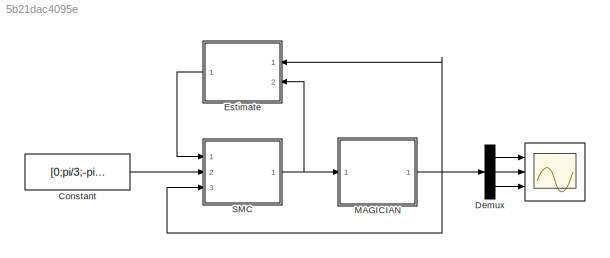
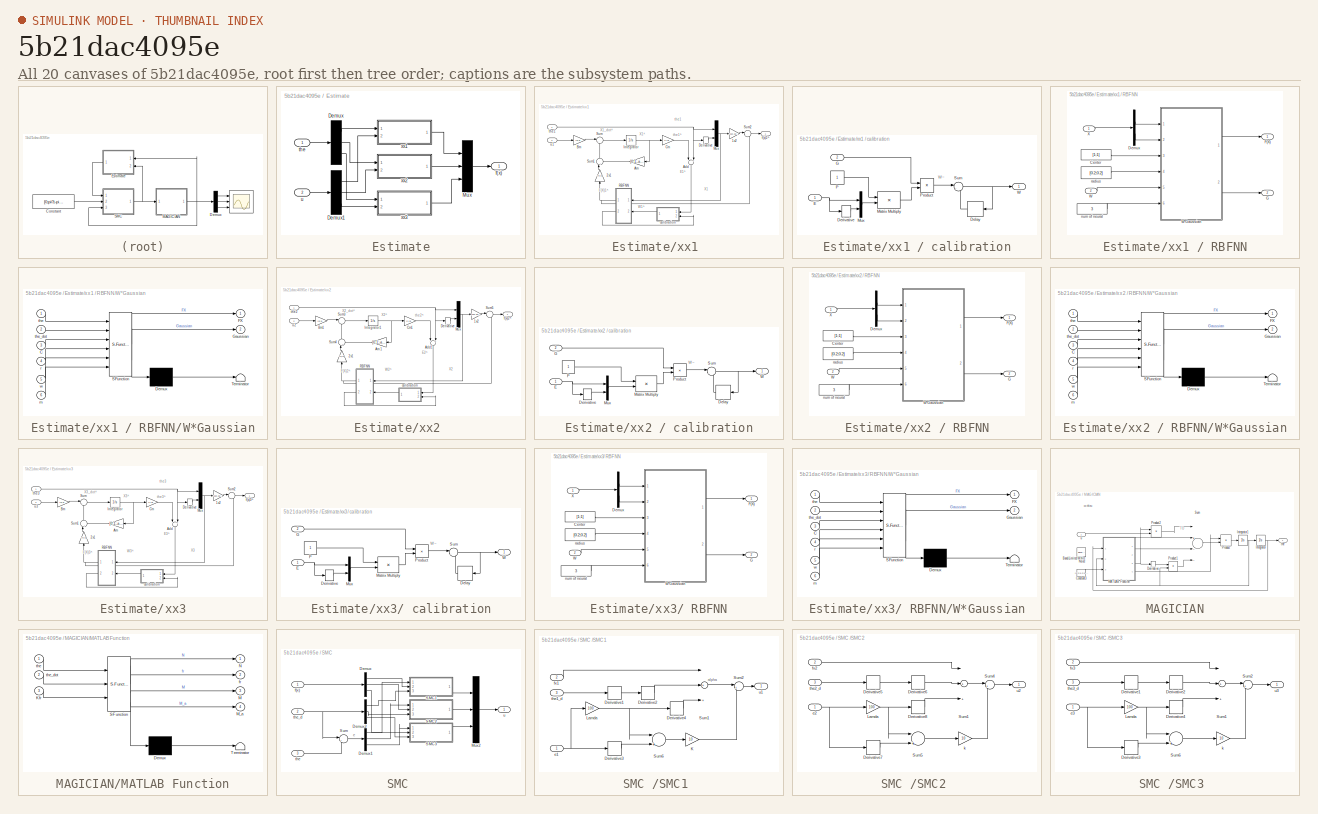
[diagram: thumbnail index - all 20 canvases of the model, root first then tree order]
MODEL slx_5b21dac4095e
KIND model
CONFIG AbsTol = auto
CONFIG EnableMultiTasking = off
CONFIG FixedStep = auto
CONFIG MaxStep = auto
CONFIG MinStep = auto
CONFIG RelTol = 1e-3
CONFIG SampleTimeConstraint = Unconstrained
CONFIG Solver = VariableStepAuto
CONFIG SolverName = VariableStepAuto
CONFIG StartTime = 0.0
CONFIG StopTime = 10.0
BLOCK [Scope]  
  NumInputPorts = 3
  Ports = [3]
  ScopeSpecificationString = Simulink.scopes.TimeScopeBlockCfg('CurrentConfiguration', extmgr.ConfigurationSet(extmgr.Configuration('Core','General UI',true),extmgr.Configuration('Core','Source UI',true),extmgr.Configuration('Sources','WiredSimulink',true,'DataLoggingVariableName','ScopeData1','DataLoggingSaveFormat','Structure'),extmgr.Configuration('Visuals','Time Domain',true,'SerializedDisplays',{struct('MinYLimReal','-1....<+2729ch>
BLOCK [Constant] Constant
  Value = [0;pi/3;-pi/4]
BLOCK [Demux] Demux
  DisplayOption = bar
  Outputs = 3
  Ports = [1, 3]
BLOCK [SubSystem] Estimate
  Ports = [2, 1]
  RequestExecContextInheritance = off
  Variant = off
BLOCK [Demux] Estimate/Demux
  DisplayOption = bar
  Outputs = 3
  Ports = [1, 3]
BLOCK [Demux] Estimate/Demux1
  DisplayOption = bar
  Outputs = 3
  Ports = [1, 3]
BLOCK [Mux] Estimate/Mux
  DisplayOption = bar
  Inputs = 3
  Ports = [3, 1]
BLOCK [Outport] Estimate/f(x)
  IconDisplay = Port number
BLOCK [Inport] Estimate/the
  IconDisplay = Port number
BLOCK [Inport] Estimate/u 
  IconDisplay = Port number
  Port = 2
BLOCK [SubSystem] Estimate/xx1 
  Ports = [2, 1]
  RequestExecContextInheritance = off
  Variant = off
BLOCK [SubSystem] Estimate/xx1 / RBFNN
  Ports = [2, 2]
  RequestExecContextInheritance = off
  Variant = off
BLOCK [Constant] Estimate/xx1 / RBFNN/Center
  Value = [1;1]
BLOCK [Demux] Estimate/xx1 / RBFNN/Demux
  DisplayOption = bar
  Outputs = 2
  Ports = [1, 2]
BLOCK [Outport] Estimate/xx1 / RBFNN/F(X)
  IconDisplay = Port number
BLOCK [Outport] Estimate/xx1 / RBFNN/G
  IconDisplay = Port number
  Port = 2
BLOCK [Inport] Estimate/xx1 / RBFNN/W
  IconDisplay = Port number
  Port = 2
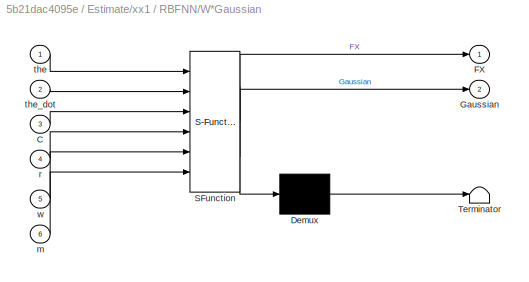
BLOCK [SubSystem] Estimate/xx1 / RBFNN/W*Gaussian
  ErrorFcn = Stateflow.Translate.translate
  PermitHierarchicalResolution = ExplicitOnly
  Ports = [6, 2]
  RequestExecContextInheritance = off
  SFBlockType = MATLAB Function
  TreatAsAtomicUnit = on
  Variant = off
BLOCK [Demux] Estimate/xx1 / RBFNN/W*Gaussian/ Demux 
  Outputs = 1
  Ports = [1, 1]
BLOCK [S-Function] Estimate/xx1 / RBFNN/W*Gaussian/ SFunction 
  EnableBusSupport = on
  FunctionName = sf_sfun
  PortCounts = [6 3]
  Ports = [6, 3]
  SFcnIsStateOwnerBlock = off
  SFunctionDeploymentMode = off
  Tag = Stateflow S-Function RANNSMC 1
BLOCK [Terminator] Estimate/xx1 / RBFNN/W*Gaussian/ Terminator 
BLOCK [Inport] Estimate/xx1 / RBFNN/W*Gaussian/C
  IconDisplay = Port number
  Port = 3
BLOCK [Outport] Estimate/xx1 / RBFNN/W*Gaussian/FX
  IconDisplay = Port number
BLOCK [Outport] Estimate/xx1 / RBFNN/W*Gaussian/Gaussian
  IconDisplay = Port number
  Port = 2
BLOCK [Inport] Estimate/xx1 / RBFNN/W*Gaussian/m
  IconDisplay = Port number
  Port = 6
BLOCK [Inport] Estimate/xx1 / RBFNN/W*Gaussian/r
  IconDisplay = Port number
  Port = 4
BLOCK [Inport] Estimate/xx1 / RBFNN/W*Gaussian/the
  IconDisplay = Port number
BLOCK [Inport] Estimate/xx1 / RBFNN/W*Gaussian/the_dot
  IconDisplay = Port number
  Port = 2
BLOCK [Inport] Estimate/xx1 / RBFNN/W*Gaussian/w
  IconDisplay = Port number
  Port = 5
BLOCK [Inport] Estimate/xx1 / RBFNN/X 
  IconDisplay = Port number
BLOCK [Constant] Estimate/xx1 / RBFNN/num of neural
  Value = 3
BLOCK [Constant] Estimate/xx1 / RBFNN/radius
  Value = [0.2;0.2]
BLOCK [SubSystem] Estimate/xx1 / calibration
  Ports = [2, 1]
  RequestExecContextInheritance = off
  Variant = off
BLOCK [Delay] Estimate/xx1 / calibration/Delay
  DelayLength = 1
  InitialCondition = 0
  InputPortMap = u0
  Ports = [1, 1]
BLOCK [Derivative] Estimate/xx1 / calibration/Derivative
BLOCK [Inport] Estimate/xx1 / calibration/E
  IconDisplay = Port number
BLOCK [Inport] Estimate/xx1 / calibration/G
  IconDisplay = Port number
  Port = 2
BLOCK [Product] Estimate/xx1 / calibration/Matrix Multiply
  InputSameDT = off
  Multiplication = Matrix(*)
  OutDataTypeStr = Inherit: Inherit via internal rule
  Ports = [2, 1]
  RndMeth = Floor
  SaturateOnIntegerOverflow = off
BLOCK [Mux] Estimate/xx1 / calibration/Mux
  DisplayOption = bar
  Inputs = 2
  Ports = [2, 1]
BLOCK [Constant] Estimate/xx1 / calibration/P
BLOCK [Product] Estimate/xx1 / calibration/Product
  InputSameDT = off
  OutDataTypeStr = Inherit: Inherit via internal rule
  Ports = [2, 1]
  RndMeth = Floor
  SaturateOnIntegerOverflow = off
BLOCK [Sum] Estimate/xx1 / calibration/Sum
  IconShape = round
  InputSameDT = off
  Inputs = |-+
  OutDataTypeStr = Inherit: Inherit via internal rule
  Ports = [2, 1]
  SaturateOnIntegerOverflow = off
BLOCK [Outport] Estimate/xx1 / calibration/W
  IconDisplay = Port number
BLOCK [Gain] Estimate/xx1 /1x2
  Gain = [a21 a22]
  Multiplication = Matrix(K*u)
  OutDataTypeStr = Inherit: Inherit via internal rule
  ParamDataTypeStr = Inherit: Inherit via internal rule
  SaturateOnIntegerOverflow = off
BLOCK [Gain] Estimate/xx1 /2x1
  Gain = [0;1]
  Multiplication = Matrix(K*u)
  OutDataTypeStr = Inherit: Inherit via internal rule
  ParamDataTypeStr = Inherit: Inherit via internal rule
  SaturateOnIntegerOverflow = off
BLOCK [Sum] Estimate/xx1 /Add
  InputSameDT = off
  Inputs = -+
  OutDataTypeStr = Inherit: Inherit via internal rule
  Ports = [2, 1]
  SaturateOnIntegerOverflow = off
BLOCK [Gain] Estimate/xx1 /Am 
  Gain = [0,1;-a21,-a22]
  Multiplication = Matrix(K*u)
  OutDataTypeStr = Inherit: Inherit via internal rule
  ParamDataTypeStr = Inherit: Inherit via internal rule
  SaturateOnIntegerOverflow = off
BLOCK [Gain] Estimate/xx1 /Bm
  Gain = [0;1]
  Multiplication = Matrix(K*u)
  OutDataTypeStr = Inherit: Inherit via internal rule
  ParamDataTypeStr = Inherit: Inherit via internal rule
  SaturateOnIntegerOverflow = off
BLOCK [Gain] Estimate/xx1 /Cm
  Gain = [1 0]
  Multiplication = Matrix(K*u)
  OutDataTypeStr = Inherit: Inherit via internal rule
  ParamDataTypeStr = Inherit: Inherit via internal rule
  SaturateOnIntegerOverflow = off
BLOCK [Derivative] Estimate/xx1 /Derivative
BLOCK [Integrator] Estimate/xx1 /Integrator
  Ports = [1, 1]
BLOCK [Mux] Estimate/xx1 /Mux
  DisplayOption = bar
  Inputs = 2
  Ports = [2, 1]
BLOCK [Sum] Estimate/xx1 /Sum
  IconShape = round
  InputSameDT = off
  Inputs = |++
  OutDataTypeStr = Inherit: Inherit via internal rule
  Ports = [2, 1]
  SaturateOnIntegerOverflow = off
BLOCK [Sum] Estimate/xx1 /Sum1
  IconShape = round
  InputSameDT = off
  Inputs = |++
  OutDataTypeStr = Inherit: Inherit via internal rule
  Ports = [2, 1]
  SaturateOnIntegerOverflow = off
BLOCK [Sum] Estimate/xx1 /Sum2
  IconShape = round
  InputSameDT = off
  Inputs = |-+
  OutDataTypeStr = Inherit: Inherit via internal rule
  Ports = [2, 1]
  SaturateOnIntegerOverflow = off
BLOCK [Outport] Estimate/xx1 /f(x)1^
  IconDisplay = Port number
BLOCK [Inport] Estimate/xx1 /the1
  IconDisplay = Port number
BLOCK [Inport] Estimate/xx1 /u1
  IconDisplay = Port number
  Port = 2
BLOCK [SubSystem] Estimate/xx2 
  Ports = [2, 1]
  RequestExecContextInheritance = off
  Variant = off
BLOCK [SubSystem] Estimate/xx2 / RBFNN
  Ports = [2, 2]
  RequestExecContextInheritance = off
  Variant = off
BLOCK [Constant] Estimate/xx2 / RBFNN/Center
  Value = [1;1]
BLOCK [Demux] Estimate/xx2 / RBFNN/Demux
  DisplayOption = bar
  Outputs = 2
  Ports = [1, 2]
BLOCK [Outport] Estimate/xx2 / RBFNN/F(X)
  IconDisplay = Port number
BLOCK [Outport] Estimate/xx2 / RBFNN/G
  IconDisplay = Port number
  Port = 2
BLOCK [Inport] Estimate/xx2 / RBFNN/W
  IconDisplay = Port number
  Port = 2
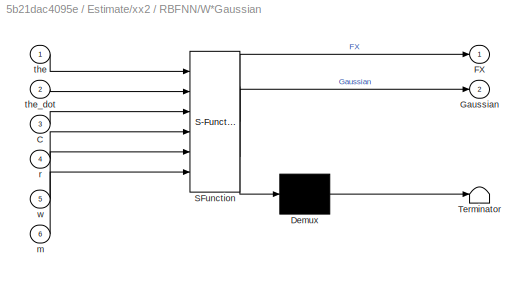
BLOCK [SubSystem] Estimate/xx2 / RBFNN/W*Gaussian
  ErrorFcn = Stateflow.Translate.translate
  PermitHierarchicalResolution = ExplicitOnly
  Ports = [6, 2]
  RequestExecContextInheritance = off
  SFBlockType = MATLAB Function
  TreatAsAtomicUnit = on
  Variant = off
BLOCK [Demux] Estimate/xx2 / RBFNN/W*Gaussian/ Demux 
  Outputs = 1
  Ports = [1, 1]
BLOCK [S-Function] Estimate/xx2 / RBFNN/W*Gaussian/ SFunction 
  EnableBusSupport = on
  FunctionName = sf_sfun
  PortCounts = [6 3]
  Ports = [6, 3]
  SFcnIsStateOwnerBlock = off
  SFunctionDeploymentMode = off
  Tag = Stateflow S-Function RANNSMC 5
BLOCK [Terminator] Estimate/xx2 / RBFNN/W*Gaussian/ Terminator 
BLOCK [Inport] Estimate/xx2 / RBFNN/W*Gaussian/C
  IconDisplay = Port number
  Port = 3
BLOCK [Outport] Estimate/xx2 / RBFNN/W*Gaussian/FX
  IconDisplay = Port number
BLOCK [Outport] Estimate/xx2 / RBFNN/W*Gaussian/Gaussian
  IconDisplay = Port number
  Port = 2
BLOCK [Inport] Estimate/xx2 / RBFNN/W*Gaussian/m
  IconDisplay = Port number
  Port = 6
BLOCK [Inport] Estimate/xx2 / RBFNN/W*Gaussian/r
  IconDisplay = Port number
  Port = 4
BLOCK [Inport] Estimate/xx2 / RBFNN/W*Gaussian/the
  IconDisplay = Port number
BLOCK [Inport] Estimate/xx2 / RBFNN/W*Gaussian/the_dot
  IconDisplay = Port number
  Port = 2
BLOCK [Inport] Estimate/xx2 / RBFNN/W*Gaussian/w
  IconDisplay = Port number
  Port = 5
BLOCK [Inport] Estimate/xx2 / RBFNN/X 
  IconDisplay = Port number
BLOCK [Constant] Estimate/xx2 / RBFNN/num of neural
  Value = 3
BLOCK [Constant] Estimate/xx2 / RBFNN/radius
  Value = [0.2;0.2]
BLOCK [SubSystem] Estimate/xx2 / calibration
  Ports = [2, 1]
  RequestExecContextInheritance = off
  Variant = off
BLOCK [Delay] Estimate/xx2 / calibration/Delay
  DelayLength = 1
  InitialCondition = 0
  InputPortMap = u0
  Ports = [1, 1]
BLOCK [Derivative] Estimate/xx2 / calibration/Derivative
BLOCK [Inport] Estimate/xx2 / calibration/E
  IconDisplay = Port number
BLOCK [Inport] Estimate/xx2 / calibration/G
  IconDisplay = Port number
  Port = 2
BLOCK [Product] Estimate/xx2 / calibration/Matrix Multiply
  InputSameDT = off
  Multiplication = Matrix(*)
  OutDataTypeStr = Inherit: Inherit via internal rule
  Ports = [2, 1]
  RndMeth = Floor
  SaturateOnIntegerOverflow = off
BLOCK [Mux] Estimate/xx2 / calibration/Mux
  DisplayOption = bar
  Inputs = 2
  Ports = [2, 1]
BLOCK [Constant] Estimate/xx2 / calibration/P
BLOCK [Product] Estimate/xx2 / calibration/Product
  InputSameDT = off
  OutDataTypeStr = Inherit: Inherit via internal rule
  Ports = [2, 1]
  RndMeth = Floor
  SaturateOnIntegerOverflow = off
BLOCK [Sum] Estimate/xx2 / calibration/Sum
  IconShape = round
  InputSameDT = off
  Inputs = |-+
  OutDataTypeStr = Inherit: Inherit via internal rule
  Ports = [2, 1]
  SaturateOnIntegerOverflow = off
BLOCK [Outport] Estimate/xx2 / calibration/W
  IconDisplay = Port number
BLOCK [Gain] Estimate/xx2 /1x2
  Gain = [a21 a22]
  Multiplication = Matrix(K*u)
  OutDataTypeStr = Inherit: Inherit via internal rule
  ParamDataTypeStr = Inherit: Inherit via internal rule
  SaturateOnIntegerOverflow = off
BLOCK [Gain] Estimate/xx2 /2x1
  Gain = [0;1]
  Multiplication = Matrix(K*u)
  OutDataTypeStr = Inherit: Inherit via internal rule
  ParamDataTypeStr = Inherit: Inherit via internal rule
  SaturateOnIntegerOverflow = off
BLOCK [Sum] Estimate/xx2 /Add1
  InputSameDT = off
  Inputs = -+
  OutDataTypeStr = Inherit: Inherit via internal rule
  Ports = [2, 1]
  SaturateOnIntegerOverflow = off
BLOCK [Gain] Estimate/xx2 /Am 1
  Gain = [0,1;-a21,-a22]
  Multiplication = Matrix(K*u)
  OutDataTypeStr = Inherit: Inherit via internal rule
  ParamDataTypeStr = Inherit: Inherit via internal rule
  SaturateOnIntegerOverflow = off
BLOCK [Gain] Estimate/xx2 /Bm1
  Gain = [0;1]
  Multiplication = Matrix(K*u)
  OutDataTypeStr = Inherit: Inherit via internal rule
  ParamDataTypeStr = Inherit: Inherit via internal rule
  SaturateOnIntegerOverflow = off
BLOCK [Gain] Estimate/xx2 /Cm1
  Gain = [1 0]
  Multiplication = Matrix(K*u)
  OutDataTypeStr = Inherit: Inherit via internal rule
  ParamDataTypeStr = Inherit: Inherit via internal rule
  SaturateOnIntegerOverflow = off
BLOCK [Derivative] Estimate/xx2 /Derivative
BLOCK [Integrator] Estimate/xx2 /Integrator1
  Ports = [1, 1]
BLOCK [Mux] Estimate/xx2 /Mux
  DisplayOption = bar
  Inputs = 2
  Ports = [2, 1]
BLOCK [Sum] Estimate/xx2 /Sum3
  IconShape = round
  InputSameDT = off
  Inputs = |++
  OutDataTypeStr = Inherit: Inherit via internal rule
  Ports = [2, 1]
  SaturateOnIntegerOverflow = off
BLOCK [Sum] Estimate/xx2 /Sum4
  IconShape = round
  InputSameDT = off
  Inputs = |++
  OutDataTypeStr = Inherit: Inherit via internal rule
  Ports = [2, 1]
  SaturateOnIntegerOverflow = off
BLOCK [Sum] Estimate/xx2 /Sum5
  IconShape = round
  InputSameDT = off
  Inputs = |-+
  OutDataTypeStr = Inherit: Inherit via internal rule
  Ports = [2, 1]
  SaturateOnIntegerOverflow = off
BLOCK [Outport] Estimate/xx2 /f(x)2^
  IconDisplay = Port number
BLOCK [Inport] Estimate/xx2 /the2
  IconDisplay = Port number
BLOCK [Inport] Estimate/xx2 /u2
  IconDisplay = Port number
  Port = 2
BLOCK [SubSystem] Estimate/xx3
  Ports = [2, 1]
  RequestExecContextInheritance = off
  Variant = off
BLOCK [SubSystem] Estimate/xx3/ RBFNN
  Ports = [2, 2]
  RequestExecContextInheritance = off
  Variant = off
BLOCK [Constant] Estimate/xx3/ RBFNN/Center
  Value = [1;1]
BLOCK [Demux] Estimate/xx3/ RBFNN/Demux
  DisplayOption = bar
  Outputs = 2
  Ports = [1, 2]
BLOCK [Outport] Estimate/xx3/ RBFNN/F(X)
  IconDisplay = Port number
BLOCK [Outport] Estimate/xx3/ RBFNN/G
  IconDisplay = Port number
  Port = 2
BLOCK [Inport] Estimate/xx3/ RBFNN/W
  IconDisplay = Port number
  Port = 2
BLOCK [SubSystem] Estimate/xx3/ RBFNN/W*Gaussian
  ErrorFcn = Stateflow.Translate.translate
  PermitHierarchicalResolution = ExplicitOnly
  Ports = [6, 2]
  RequestExecContextInheritance = off
  SFBlockType = MATLAB Function
  TreatAsAtomicUnit = on
  Variant = off
BLOCK [Demux] Estimate/xx3/ RBFNN/W*Gaussian/ Demux 
  Outputs = 1
  Ports = [1, 1]
BLOCK [S-Function] Estimate/xx3/ RBFNN/W*Gaussian/ SFunction 
  EnableBusSupport = on
  FunctionName = sf_sfun
  PortCounts = [6 3]
  Ports = [6, 3]
  SFcnIsStateOwnerBlock = off
  SFunctionDeploymentMode = off
  Tag = Stateflow S-Function RANNSMC 4
BLOCK [Terminator] Estimate/xx3/ RBFNN/W*Gaussian/ Terminator 
BLOCK [Inport] Estimate/xx3/ RBFNN/W*Gaussian/C
  IconDisplay = Port number
  Port = 3
BLOCK [Outport] Estimate/xx3/ RBFNN/W*Gaussian/FX
  IconDisplay = Port number
BLOCK [Outport] Estimate/xx3/ RBFNN/W*Gaussian/Gaussian
  IconDisplay = Port number
  Port = 2
BLOCK [Inport] Estimate/xx3/ RBFNN/W*Gaussian/m
  IconDisplay = Port number
  Port = 6
BLOCK [Inport] Estimate/xx3/ RBFNN/W*Gaussian/r
  IconDisplay = Port number
  Port = 4
BLOCK [Inport] Estimate/xx3/ RBFNN/W*Gaussian/the
  IconDisplay = Port number
BLOCK [Inport] Estimate/xx3/ RBFNN/W*Gaussian/the_dot
  IconDisplay = Port number
  Port = 2
BLOCK [Inport] Estimate/xx3/ RBFNN/W*Gaussian/w
  IconDisplay = Port number
  Port = 5
BLOCK [Inport] Estimate/xx3/ RBFNN/X 
  IconDisplay = Port number
BLOCK [Constant] Estimate/xx3/ RBFNN/num of neural
  Value = 3
BLOCK [Constant] Estimate/xx3/ RBFNN/radius
  Value = [0.2;0.2]
BLOCK [SubSystem] Estimate/xx3/ calibration
  Ports = [2, 1]
  RequestExecContextInheritance = off
  Variant = off
BLOCK [Delay] Estimate/xx3/ calibration/Delay
  DelayLength = 1
  InitialCondition = 0
  InputPortMap = u0
  Ports = [1, 1]
BLOCK [Derivative] Estimate/xx3/ calibration/Derivative
BLOCK [Inport] Estimate/xx3/ calibration/E
  IconDisplay = Port number
BLOCK [Inport] Estimate/xx3/ calibration/G
  IconDisplay = Port number
  Port = 2
BLOCK [Product] Estimate/xx3/ calibration/Matrix Multiply
  InputSameDT = off
  Multiplication = Matrix(*)
  OutDataTypeStr = Inherit: Inherit via internal rule
  Ports = [2, 1]
  RndMeth = Floor
  SaturateOnIntegerOverflow = off
BLOCK [Mux] Estimate/xx3/ calibration/Mux
  DisplayOption = bar
  Inputs = 2
  Ports = [2, 1]
BLOCK [Constant] Estimate/xx3/ calibration/P
BLOCK [Product] Estimate/xx3/ calibration/Product
  InputSameDT = off
  OutDataTypeStr = Inherit: Inherit via internal rule
  Ports = [2, 1]
  RndMeth = Floor
  SaturateOnIntegerOverflow = off
BLOCK [Sum] Estimate/xx3/ calibration/Sum
  IconShape = round
  InputSameDT = off
  Inputs = |-+
  OutDataTypeStr = Inherit: Inherit via internal rule
  Ports = [2, 1]
  SaturateOnIntegerOverflow = off
BLOCK [Outport] Estimate/xx3/ calibration/W
  IconDisplay = Port number
BLOCK [Gain] Estimate/xx3/1x2
  Gain = [a21 a22]
  Multiplication = Matrix(K*u)
  OutDataTypeStr = Inherit: Inherit via internal rule
  ParamDataTypeStr = Inherit: Inherit via internal rule
  SaturateOnIntegerOverflow = off
BLOCK [Gain] Estimate/xx3/2x1
  Gain = [0;1]
  Multiplication = Matrix(K*u)
  OutDataTypeStr = Inherit: Inherit via internal rule
  ParamDataTypeStr = Inherit: Inherit via internal rule
  SaturateOnIntegerOverflow = off
BLOCK [Sum] Estimate/xx3/Add
  InputSameDT = off
  Inputs = -+
  OutDataTypeStr = Inherit: Inherit via internal rule
  Ports = [2, 1]
  SaturateOnIntegerOverflow = off
BLOCK [Gain] Estimate/xx3/Am 
  Gain = [0,1;-a21,-a22]
  Multiplication = Matrix(K*u)
  OutDataTypeStr = Inherit: Inherit via internal rule
  ParamDataTypeStr = Inherit: Inherit via internal rule
  SaturateOnIntegerOverflow = off
BLOCK [Gain] Estimate/xx3/Bm
  Gain = [0;1]
  Multiplication = Matrix(K*u)
  OutDataTypeStr = Inherit: Inherit via internal rule
  ParamDataTypeStr = Inherit: Inherit via internal rule
  SaturateOnIntegerOverflow = off
BLOCK [Gain] Estimate/xx3/Cm
  Gain = [1 0]
  Multiplication = Matrix(K*u)
  OutDataTypeStr = Inherit: Inherit via internal rule
  ParamDataTypeStr = Inherit: Inherit via internal rule
  SaturateOnIntegerOverflow = off
BLOCK [Derivative] Estimate/xx3/Derivative
BLOCK [Integrator] Estimate/xx3/Integrator
  Ports = [1, 1]
BLOCK [Mux] Estimate/xx3/Mux
  DisplayOption = bar
  Inputs = 2
  Ports = [2, 1]
BLOCK [Sum] Estimate/xx3/Sum
  IconShape = round
  InputSameDT = off
  Inputs = |++
  OutDataTypeStr = Inherit: Inherit via internal rule
  Ports = [2, 1]
  SaturateOnIntegerOverflow = off
BLOCK [Sum] Estimate/xx3/Sum1
  IconShape = round
  InputSameDT = off
  Inputs = |++
  OutDataTypeStr = Inherit: Inherit via internal rule
  Ports = [2, 1]
  SaturateOnIntegerOverflow = off
BLOCK [Sum] Estimate/xx3/Sum2
  IconShape = round
  InputSameDT = off
  Inputs = |-+
  OutDataTypeStr = Inherit: Inherit via internal rule
  Ports = [2, 1]
  SaturateOnIntegerOverflow = off
BLOCK [Outport] Estimate/xx3/f(x)3^
  IconDisplay = Port number
BLOCK [Inport] Estimate/xx3/the3
  IconDisplay = Port number
BLOCK [Inport] Estimate/xx3/u3
  IconDisplay = Port number
  Port = 2
BLOCK [SubSystem] MAGICIAN
  Ports = [1, 1]
  RequestExecContextInheritance = off
  Variant = off
BLOCK [Reference] MAGICIAN/Band-Limited White Noise  REF=simulink/Sources/Band-Limited
White Noise
  Ports = [0, 1]
  SourceBlock = simulink/Sources/Band-Limited\nWhite Noise
  SourceProductBaseCode = SL
  SourceProductName = Simulink
  SourceType = Band-Limited White Noise.
BLOCK [Constant] MAGICIAN/Constant3
  Value = [0.2;0.2;0.2]
BLOCK [Derivative] MAGICIAN/Derivative
BLOCK [Integrator] MAGICIAN/Integrator
  InitialCondition = [0;0;0]
  Ports = [1, 1]
BLOCK [Integrator] MAGICIAN/Integrator1
  InitialCondition = [0;0;0]
  Ports = [1, 1]
BLOCK [SubSystem] MAGICIAN/MATLAB Function
  ErrorFcn = Stateflow.Translate.translate
  PermitHierarchicalResolution = ExplicitOnly
  Ports = [3, 4]
  RequestExecContextInheritance = off
  SFBlockType = MATLAB Function
  TreatAsAtomicUnit = on
  Variant = off
BLOCK [Demux] MAGICIAN/MATLAB Function/ Demux 
  Outputs = 1
  Ports = [1, 1]
BLOCK [S-Function] MAGICIAN/MATLAB Function/ SFunction 
  EnableBusSupport = on
  FunctionName = sf_sfun
  PortCounts = [3 5]
  Ports = [3, 5]
  SFcnIsStateOwnerBlock = off
  SFunctionDeploymentMode = off
  Tag = Stateflow S-Function RANNSMC 2
BLOCK [Terminator] MAGICIAN/MATLAB Function/ Terminator 
BLOCK [Inport] MAGICIAN/MATLAB Function/Kfr
  IconDisplay = Port number
  Port = 3
BLOCK [Outport] MAGICIAN/MATLAB Function/M
  IconDisplay = Port number
  Port = 3
BLOCK [Outport] MAGICIAN/MATLAB Function/M_a
  IconDisplay = Port number
  Port = 4
BLOCK [Outport] MAGICIAN/MATLAB Function/N
  IconDisplay = Port number
BLOCK [Outport] MAGICIAN/MATLAB Function/fr
  IconDisplay = Port number
  Port = 2
BLOCK [Inport] MAGICIAN/MATLAB Function/the
  IconDisplay = Port number
BLOCK [Inport] MAGICIAN/MATLAB Function/the_dot
  IconDisplay = Port number
  Port = 2
BLOCK [Product] MAGICIAN/Product
  InputSameDT = off
  Multiplication = Matrix(*)
  OutDataTypeStr = Inherit: Inherit via internal rule
  Ports = [2, 1]
  RndMeth = Floor
  SaturateOnIntegerOverflow = off
BLOCK [Product] MAGICIAN/Product1
  InputSameDT = off
  Multiplication = Matrix(*)
  OutDataTypeStr = Inherit: Inherit via internal rule
  Ports = [2, 1]
  RndMeth = Floor
  SaturateOnIntegerOverflow = off
BLOCK [Product] MAGICIAN/Product2
  InputSameDT = off
  Multiplication = Matrix(*)
  OutDataTypeStr = Inherit: Inherit via internal rule
  Ports = [2, 1]
  RndMeth = Floor
  SaturateOnIntegerOverflow = off
BLOCK [Sum] MAGICIAN/Sum
  InputSameDT = off
  Inputs = |+---
  OutDataTypeStr = Inherit: Inherit via internal rule
  Ports = [4, 1]
  SaturateOnIntegerOverflow = off
BLOCK [Outport] MAGICIAN/the
  IconDisplay = Port number
BLOCK [Inport] MAGICIAN/u 
  IconDisplay = Port number
BLOCK [SubSystem] SMC 
  Ports = [3, 1]
  RequestExecContextInheritance = off
  Variant = off
BLOCK [Demux] SMC /Demux
  DisplayOption = bar
  Outputs = 3
  Ports = [1, 3]
BLOCK [Demux] SMC /Demux1
  DisplayOption = bar
  Outputs = 3
  Ports = [1, 3]
BLOCK [Demux] SMC /Demux2
  DisplayOption = bar
  Outputs = 3
  Ports = [1, 3]
BLOCK [Mux] SMC /Mux2
  DisplayOption = bar
  Inputs = 3
  Ports = [3, 1]
BLOCK [SubSystem] SMC /SMC1 
  Ports = [3, 1]
  RequestExecContextInheritance = off
  Variant = off
BLOCK [Derivative] SMC /SMC1 /Derivative1
BLOCK [Derivative] SMC /SMC1 /Derivative2
BLOCK [Derivative] SMC /SMC1 /Derivative3
BLOCK [Derivative] SMC /SMC1 /Derivative4
BLOCK [Gain] SMC /SMC1 /K 
  Gain = 10
  OutDataTypeStr = Inherit: Inherit via internal rule
  ParamDataTypeStr = Inherit: Inherit via internal rule
  SaturateOnIntegerOverflow = off
BLOCK [Gain] SMC /SMC1 /Lamda
  Gain = 100
  OutDataTypeStr = Inherit: Inherit via internal rule
  ParamDataTypeStr = Inherit: Inherit via internal rule
  SaturateOnIntegerOverflow = off
BLOCK [Sum] SMC /SMC1 /Sum1
  InputSameDT = off
  Inputs = |+++
  OutDataTypeStr = Inherit: Inherit via internal rule
  Ports = [3, 1]
  SaturateOnIntegerOverflow = off
BLOCK [Sum] SMC /SMC1 /Sum2
  IconShape = round
  InputSameDT = off
  Inputs = |++
  OutDataTypeStr = Inherit: Inherit via internal rule
  Ports = [2, 1]
  SaturateOnIntegerOverflow = off
BLOCK [Sum] SMC /SMC1 /Sum6
  InputSameDT = off
  Inputs = |++
  OutDataTypeStr = Inherit: Inherit via internal rule
  Ports = [2, 1]
  SaturateOnIntegerOverflow = off
BLOCK [Inport] SMC /SMC1 /e1
  IconDisplay = Port number
BLOCK [Inport] SMC /SMC1 /fx1
  IconDisplay = Port number
  Port = 2
BLOCK [Inport] SMC /SMC1 /the1_d
  IconDisplay = Port number
  Port = 3
BLOCK [Outport] SMC /SMC1 /u1
  IconDisplay = Port number
BLOCK [SubSystem] SMC /SMC2 
  Ports = [3, 1]
  RequestExecContextInheritance = off
  Variant = off
BLOCK [Derivative] SMC /SMC2 /Derivative5
BLOCK [Derivative] SMC /SMC2 /Derivative6
BLOCK [Derivative] SMC /SMC2 /Derivative7
BLOCK [Derivative] SMC /SMC2 /Derivative8
BLOCK [Gain] SMC /SMC2 /Lamda
  Gain = 100
  OutDataTypeStr = Inherit: Inherit via internal rule
  ParamDataTypeStr = Inherit: Inherit via internal rule
  SaturateOnIntegerOverflow = off
BLOCK [Sum] SMC /SMC2 /Sum1
  InputSameDT = off
  Inputs = |+++
  OutDataTypeStr = Inherit: Inherit via internal rule
  Ports = [3, 1]
  SaturateOnIntegerOverflow = off
BLOCK [Sum] SMC /SMC2 /Sum4
  IconShape = round
  InputSameDT = off
  Inputs = |++
  OutDataTypeStr = Inherit: Inherit via internal rule
  Ports = [2, 1]
  SaturateOnIntegerOverflow = off
BLOCK [Sum] SMC /SMC2 /Sum5
  InputSameDT = off
  Inputs = |++
  OutDataTypeStr = Inherit: Inherit via internal rule
  Ports = [2, 1]
  SaturateOnIntegerOverflow = off
BLOCK [Inport] SMC /SMC2 /e2
  IconDisplay = Port number
BLOCK [Inport] SMC /SMC2 /fx2
  IconDisplay = Port number
  Port = 2
BLOCK [Gain] SMC /SMC2 /k
  Gain = 10
  OutDataTypeStr = Inherit: Inherit via internal rule
  ParamDataTypeStr = Inherit: Inherit via internal rule
  SaturateOnIntegerOverflow = off
BLOCK [Inport] SMC /SMC2 /the2_d
  IconDisplay = Port number
  Port = 3
BLOCK [Outport] SMC /SMC2 /u2
  IconDisplay = Port number
BLOCK [SubSystem] SMC /SMC3 
  Ports = [3, 1]
  RequestExecContextInheritance = off
  Variant = off
BLOCK [Derivative] SMC /SMC3 /Derivative1
BLOCK [Derivative] SMC /SMC3 /Derivative2
BLOCK [Derivative] SMC /SMC3 /Derivative3
BLOCK [Derivative] SMC /SMC3 /Derivative4
BLOCK [Gain] SMC /SMC3 /Lamda
  Gain = 100
  OutDataTypeStr = Inherit: Inherit via internal rule
  ParamDataTypeStr = Inherit: Inherit via internal rule
  SaturateOnIntegerOverflow = off
BLOCK [Sum] SMC /SMC3 /Sum1
  InputSameDT = off
  Inputs = |+++
  OutDataTypeStr = Inherit: Inherit via internal rule
  Ports = [3, 1]
  SaturateOnIntegerOverflow = off
BLOCK [Sum] SMC /SMC3 /Sum2
  IconShape = round
  InputSameDT = off
  Inputs = |++
  OutDataTypeStr = Inherit: Inherit via internal rule
  Ports = [2, 1]
  SaturateOnIntegerOverflow = off
BLOCK [Sum] SMC /SMC3 /Sum6
  InputSameDT = off
  Inputs = |++
  OutDataTypeStr = Inherit: Inherit via internal rule
  Ports = [2, 1]
  SaturateOnIntegerOverflow = off
BLOCK [Inport] SMC /SMC3 /e3
  IconDisplay = Port number
BLOCK [Inport] SMC /SMC3 /fx3
  IconDisplay = Port number
  Port = 2
BLOCK [Gain] SMC /SMC3 /k 
  Gain = 10
  OutDataTypeStr = Inherit: Inherit via internal rule
  ParamDataTypeStr = Inherit: Inherit via internal rule
  SaturateOnIntegerOverflow = off
BLOCK [Inport] SMC /SMC3 /the3_d
  IconDisplay = Port number
  Port = 3
BLOCK [Outport] SMC /SMC3 /u3
  IconDisplay = Port number
BLOCK [Sum] SMC /Sum
  IconShape = round
  InputSameDT = off
  Inputs = |+-
  OutDataTypeStr = Inherit: Inherit via internal rule
  Ports = [2, 1]
  SaturateOnIntegerOverflow = off
BLOCK [Inport] SMC /f(x)
  IconDisplay = Port number
BLOCK [Inport] SMC /the 
  IconDisplay = Port number
  Port = 3
BLOCK [Inport] SMC /the_d
  IconDisplay = Port number
  Port = 2
BLOCK [Outport] SMC /u 
  IconDisplay = Port number
ANNOTATION Estimate/xx1 : E1^
ANNOTATION Estimate/xx1 : F(X)1^
ANNOTATION Estimate/xx1 : W1^
ANNOTATION Estimate/xx1 : X1
ANNOTATION Estimate/xx1 : X1^
ANNOTATION Estimate/xx1 : X1_dot^
ANNOTATION Estimate/xx1 : the1
ANNOTATION Estimate/xx1 : the1^
ANNOTATION Estimate/xx1 / calibration: W~
ANNOTATION Estimate/xx2 : E2^
ANNOTATION Estimate/xx2 : F(X)2^
ANNOTATION Estimate/xx2 : W2^
ANNOTATION Estimate/xx2 : X2
ANNOTATION Estimate/xx2 : X2^
ANNOTATION Estimate/xx2 : X2_dot^
ANNOTATION Estimate/xx2 : the2^
ANNOTATION Estimate/xx2 / calibration: W~
ANNOTATION Estimate/xx3: E3^
ANNOTATION Estimate/xx3: F(X)3^
ANNOTATION Estimate/xx3: W3^
ANNOTATION Estimate/xx3: X3
ANNOTATION Estimate/xx3: X3^
ANNOTATION Estimate/xx3: X3_dot^
ANNOTATION Estimate/xx3: the3
ANNOTATION Estimate/xx3: the3^
ANNOTATION Estimate/xx3/ calibration: W~
ANNOTATION MAGICIAN: TO
ANNOTATION MAGICIAN: co nhieu
ANNOTATION SMC : e
ANNOTATION SMC /SMC1 : alpha
LINE Constant:1 -> SMC :2
LINE Demux:1 ->  :1
LINE Demux:2 ->  :2
LINE Demux:3 ->  :3
LINE Estimate/Demux1:1 -> Estimate/xx1 :2
LINE Estimate/Demux1:2 -> Estimate/xx2 :2
LINE Estimate/Demux1:3 -> Estimate/xx3:2
LINE Estimate/Demux:1 -> Estimate/xx1 :1
LINE Estimate/Demux:2 -> Estimate/xx2 :1
LINE Estimate/Demux:3 -> Estimate/xx3:1
LINE Estimate/Mux:1 -> Estimate/f(x):1
LINE Estimate/the:1 -> Estimate/Demux:1
LINE Estimate/u :1 -> Estimate/Demux1:1
LINE Estimate/xx1 / RBFNN/Center:1 -> Estimate/xx1 / RBFNN/W*Gaussian:3
LINE Estimate/xx1 / RBFNN/Demux:1 -> Estimate/xx1 / RBFNN/W*Gaussian:1
LINE Estimate/xx1 / RBFNN/Demux:2 -> Estimate/xx1 / RBFNN/W*Gaussian:2
LINE Estimate/xx1 / RBFNN/W*Gaussian:1 -> Estimate/xx1 / RBFNN/F(X):1
LINE Estimate/xx1 / RBFNN/W*Gaussian:2 -> Estimate/xx1 / RBFNN/G:1
LINE Estimate/xx1 / RBFNN/W:1 -> Estimate/xx1 / RBFNN/W*Gaussian:5
LINE Estimate/xx1 / RBFNN/X :1 -> Estimate/xx1 / RBFNN/Demux:1
LINE Estimate/xx1 / RBFNN/num of neural:1 -> Estimate/xx1 / RBFNN/W*Gaussian:6
LINE Estimate/xx1 / RBFNN/radius:1 -> Estimate/xx1 / RBFNN/W*Gaussian:4
NET Estimate/xx1 / RBFNN:1 -> Estimate/xx1 /2x1:1, Estimate/xx1 /Sum2:2
LINE Estimate/xx1 / RBFNN:2 -> Estimate/xx1 / calibration:2
LINE Estimate/xx1 / calibration/Delay:1 -> Estimate/xx1 / calibration/Sum:2
LINE Estimate/xx1 / calibration/Derivative:1 -> Estimate/xx1 / calibration/Mux:2
NET Estimate/xx1 / calibration/E:1 -> Estimate/xx1 / calibration/Derivative:1, Estimate/xx1 / calibration/Mux:1
LINE Estimate/xx1 / calibration/G:1 -> Estimate/xx1 / calibration/Product:1
LINE Estimate/xx1 / calibration/Matrix Multiply:1 -> Estimate/xx1 / calibration/Product:2
LINE Estimate/xx1 / calibration/Mux:1 -> Estimate/xx1 / calibration/Matrix Multiply:2
LINE Estimate/xx1 / calibration/P:1 -> Estimate/xx1 / calibration/Matrix Multiply:1
LINE Estimate/xx1 / calibration/Product:1 -> Estimate/xx1 / calibration/Sum:1
NET Estimate/xx1 / calibration/Sum:1 -> Estimate/xx1 / calibration/Delay:1, Estimate/xx1 / calibration/W:1
LINE Estimate/xx1 / calibration:1 -> Estimate/xx1 / RBFNN:2
LINE Estimate/xx1 /1x2:1 -> Estimate/xx1 /Sum2:1
LINE Estimate/xx1 /2x1:1 -> Estimate/xx1 /Sum1:1
LINE Estimate/xx1 /Add:1 -> Estimate/xx1 / calibration:1
LINE Estimate/xx1 /Am :1 -> Estimate/xx1 /Sum1:2
LINE Estimate/xx1 /Bm:1 -> Estimate/xx1 /Sum:1
LINE Estimate/xx1 /Cm:1 -> Estimate/xx1 /Add:1
LINE Estimate/xx1 /Derivative:1 -> Estimate/xx1 /Mux:2
NET Estimate/xx1 /Integrator:1 -> Estimate/xx1 /Am :1, Estimate/xx1 /Cm:1
NET Estimate/xx1 /Mux:1 -> Estimate/xx1 / RBFNN:1, Estimate/xx1 /1x2:1
LINE Estimate/xx1 /Sum1:1 -> Estimate/xx1 /Sum:2
LINE Estimate/xx1 /Sum2:1 -> Estimate/xx1 /f(x)1^:1
LINE Estimate/xx1 /Sum:1 -> Estimate/xx1 /Integrator:1
NET Estimate/xx1 /the1:1 -> Estimate/xx1 /Add:2, Estimate/xx1 /Derivative:1, Estimate/xx1 /Mux:1
LINE Estimate/xx1 /u1:1 -> Estimate/xx1 /Bm:1
LINE Estimate/xx1 :1 -> Estimate/Mux:1
LINE Estimate/xx2 / RBFNN/Center:1 -> Estimate/xx2 / RBFNN/W*Gaussian:3
LINE Estimate/xx2 / RBFNN/Demux:1 -> Estimate/xx2 / RBFNN/W*Gaussian:1
LINE Estimate/xx2 / RBFNN/Demux:2 -> Estimate/xx2 / RBFNN/W*Gaussian:2
LINE Estimate/xx2 / RBFNN/W*Gaussian:1 -> Estimate/xx2 / RBFNN/F(X):1
LINE Estimate/xx2 / RBFNN/W*Gaussian:2 -> Estimate/xx2 / RBFNN/G:1
LINE Estimate/xx2 / RBFNN/W:1 -> Estimate/xx2 / RBFNN/W*Gaussian:5
LINE Estimate/xx2 / RBFNN/X :1 -> Estimate/xx2 / RBFNN/Demux:1
LINE Estimate/xx2 / RBFNN/num of neural:1 -> Estimate/xx2 / RBFNN/W*Gaussian:6
LINE Estimate/xx2 / RBFNN/radius:1 -> Estimate/xx2 / RBFNN/W*Gaussian:4
NET Estimate/xx2 / RBFNN:1 -> Estimate/xx2 /2x1:1, Estimate/xx2 /Sum5:2
LINE Estimate/xx2 / RBFNN:2 -> Estimate/xx2 / calibration:2
LINE Estimate/xx2 / calibration/Delay:1 -> Estimate/xx2 / calibration/Sum:2
LINE Estimate/xx2 / calibration/Derivative:1 -> Estimate/xx2 / calibration/Mux:2
NET Estimate/xx2 / calibration/E:1 -> Estimate/xx2 / calibration/Derivative:1, Estimate/xx2 / calibration/Mux:1
LINE Estimate/xx2 / calibration/G:1 -> Estimate/xx2 / calibration/Product:1
LINE Estimate/xx2 / calibration/Matrix Multiply:1 -> Estimate/xx2 / calibration/Product:2
LINE Estimate/xx2 / calibration/Mux:1 -> Estimate/xx2 / calibration/Matrix Multiply:2
LINE Estimate/xx2 / calibration/P:1 -> Estimate/xx2 / calibration/Matrix Multiply:1
LINE Estimate/xx2 / calibration/Product:1 -> Estimate/xx2 / calibration/Sum:1
NET Estimate/xx2 / calibration/Sum:1 -> Estimate/xx2 / calibration/Delay:1, Estimate/xx2 / calibration/W:1
LINE Estimate/xx2 / calibration:1 -> Estimate/xx2 / RBFNN:2
LINE Estimate/xx2 /1x2:1 -> Estimate/xx2 /Sum5:1
LINE Estimate/xx2 /2x1:1 -> Estimate/xx2 /Sum4:1
LINE Estimate/xx2 /Add1:1 -> Estimate/xx2 / calibration:1
LINE Estimate/xx2 /Am 1:1 -> Estimate/xx2 /Sum4:2
LINE Estimate/xx2 /Bm1:1 -> Estimate/xx2 /Sum3:1
LINE Estimate/xx2 /Cm1:1 -> Estimate/xx2 /Add1:1
LINE Estimate/xx2 /Derivative:1 -> Estimate/xx2 /Mux:2
NET Estimate/xx2 /Integrator1:1 -> Estimate/xx2 /Am 1:1, Estimate/xx2 /Cm1:1
NET Estimate/xx2 /Mux:1 -> Estimate/xx2 / RBFNN:1, Estimate/xx2 /1x2:1
LINE Estimate/xx2 /Sum3:1 -> Estimate/xx2 /Integrator1:1
LINE Estimate/xx2 /Sum4:1 -> Estimate/xx2 /Sum3:2
LINE Estimate/xx2 /Sum5:1 -> Estimate/xx2 /f(x)2^:1
NET Estimate/xx2 /the2:1 -> Estimate/xx2 /Add1:2, Estimate/xx2 /Derivative:1, Estimate/xx2 /Mux:1
LINE Estimate/xx2 /u2:1 -> Estimate/xx2 /Bm1:1
LINE Estimate/xx2 :1 -> Estimate/Mux:2
LINE Estimate/xx3/ RBFNN/Center:1 -> Estimate/xx3/ RBFNN/W*Gaussian:3
LINE Estimate/xx3/ RBFNN/Demux:1 -> Estimate/xx3/ RBFNN/W*Gaussian:1
LINE Estimate/xx3/ RBFNN/Demux:2 -> Estimate/xx3/ RBFNN/W*Gaussian:2
LINE Estimate/xx3/ RBFNN/W*Gaussian:1 -> Estimate/xx3/ RBFNN/F(X):1
LINE Estimate/xx3/ RBFNN/W*Gaussian:2 -> Estimate/xx3/ RBFNN/G:1
LINE Estimate/xx3/ RBFNN/W:1 -> Estimate/xx3/ RBFNN/W*Gaussian:5
LINE Estimate/xx3/ RBFNN/X :1 -> Estimate/xx3/ RBFNN/Demux:1
LINE Estimate/xx3/ RBFNN/num of neural:1 -> Estimate/xx3/ RBFNN/W*Gaussian:6
LINE Estimate/xx3/ RBFNN/radius:1 -> Estimate/xx3/ RBFNN/W*Gaussian:4
NET Estimate/xx3/ RBFNN:1 -> Estimate/xx3/2x1:1, Estimate/xx3/Sum2:2
LINE Estimate/xx3/ RBFNN:2 -> Estimate/xx3/ calibration:2
LINE Estimate/xx3/ calibration/Delay:1 -> Estimate/xx3/ calibration/Sum:2
LINE Estimate/xx3/ calibration/Derivative:1 -> Estimate/xx3/ calibration/Mux:2
NET Estimate/xx3/ calibration/E:1 -> Estimate/xx3/ calibration/Derivative:1, Estimate/xx3/ calibration/Mux:1
LINE Estimate/xx3/ calibration/G:1 -> Estimate/xx3/ calibration/Product:1
LINE Estimate/xx3/ calibration/Matrix Multiply:1 -> Estimate/xx3/ calibration/Product:2
LINE Estimate/xx3/ calibration/Mux:1 -> Estimate/xx3/ calibration/Matrix Multiply:2
LINE Estimate/xx3/ calibration/P:1 -> Estimate/xx3/ calibration/Matrix Multiply:1
LINE Estimate/xx3/ calibration/Product:1 -> Estimate/xx3/ calibration/Sum:1
NET Estimate/xx3/ calibration/Sum:1 -> Estimate/xx3/ calibration/Delay:1, Estimate/xx3/ calibration/W:1
LINE Estimate/xx3/ calibration:1 -> Estimate/xx3/ RBFNN:2
LINE Estimate/xx3/1x2:1 -> Estimate/xx3/Sum2:1
LINE Estimate/xx3/2x1:1 -> Estimate/xx3/Sum1:1
LINE Estimate/xx3/Add:1 -> Estimate/xx3/ calibration:1
LINE Estimate/xx3/Am :1 -> Estimate/xx3/Sum1:2
LINE Estimate/xx3/Bm:1 -> Estimate/xx3/Sum:1
LINE Estimate/xx3/Cm:1 -> Estimate/xx3/Add:1
LINE Estimate/xx3/Derivative:1 -> Estimate/xx3/Mux:2
NET Estimate/xx3/Integrator:1 -> Estimate/xx3/Am :1, Estimate/xx3/Cm:1
NET Estimate/xx3/Mux:1 -> Estimate/xx3/ RBFNN:1, Estimate/xx3/1x2:1
LINE Estimate/xx3/Sum1:1 -> Estimate/xx3/Sum:2
LINE Estimate/xx3/Sum2:1 -> Estimate/xx3/f(x)3^:1
LINE Estimate/xx3/Sum:1 -> Estimate/xx3/Integrator:1
NET Estimate/xx3/the3:1 -> Estimate/xx3/Add:2, Estimate/xx3/Derivative:1, Estimate/xx3/Mux:1
LINE Estimate/xx3/u3:1 -> Estimate/xx3/Bm:1
LINE Estimate/xx3:1 -> Estimate/Mux:3
LINE Estimate:1 -> SMC :1
LINE MAGICIAN/Constant3:1 -> MAGICIAN/MATLAB Function:3
LINE MAGICIAN/Derivative:1 -> MAGICIAN/Product1:1
NET MAGICIAN/Integrator1:1 -> MAGICIAN/Integrator:1, MAGICIAN/MATLAB Function:2, MAGICIAN/Product1:2
NET MAGICIAN/Integrator:1 -> MAGICIAN/MATLAB Function:1, MAGICIAN/the:1
LINE MAGICIAN/MATLAB Function:1 -> MAGICIAN/Sum:2
LINE MAGICIAN/MATLAB Function:2 -> MAGICIAN/Sum:3
NET MAGICIAN/MATLAB Function:3 -> MAGICIAN/Derivative:1, MAGICIAN/Product2:1
LINE MAGICIAN/MATLAB Function:4 -> MAGICIAN/Product:1
LINE MAGICIAN/Product1:1 -> MAGICIAN/Sum:4
LINE MAGICIAN/Product2:1 -> MAGICIAN/Sum:1
LINE MAGICIAN/Product:1 -> MAGICIAN/Integrator1:1
LINE MAGICIAN/Sum:1 -> MAGICIAN/Product:2
LINE MAGICIAN/u :1 -> MAGICIAN/Product2:2
NET MAGICIAN:1 -> Demux:1, Estimate:1, SMC :3
LINE SMC /Demux1:1 -> SMC /SMC1 :1
LINE SMC /Demux1:2 -> SMC /SMC2 :1
LINE SMC /Demux1:3 -> SMC /SMC3 :1
LINE SMC /Demux2:1 -> SMC /SMC1 :3
LINE SMC /Demux2:2 -> SMC /SMC2 :3
LINE SMC /Demux2:3 -> SMC /SMC3 :3
LINE SMC /Demux:1 -> SMC /SMC1 :2
LINE SMC /Demux:2 -> SMC /SMC2 :2
LINE SMC /Demux:3 -> SMC /SMC3 :2
LINE SMC /Mux2:1 -> SMC /u :1
LINE SMC /SMC1 /Derivative1:1 -> SMC /SMC1 /Derivative2:1
LINE SMC /SMC1 /Derivative2:1 -> SMC /SMC1 /Sum1:2
LINE SMC /SMC1 /Derivative3:1 -> SMC /SMC1 /Sum6:2
LINE SMC /SMC1 /Derivative4:1 -> SMC /SMC1 /Sum1:3
LINE SMC /SMC1 /K :1 -> SMC /SMC1 /Sum2:2
NET SMC /SMC1 /Lamda:1 -> SMC /SMC1 /Derivative4:1, SMC /SMC1 /Sum6:1
LINE SMC /SMC1 /Sum1:1 -> SMC /SMC1 /Sum2:1
LINE SMC /SMC1 /Sum2:1 -> SMC /SMC1 /u1:1
LINE SMC /SMC1 /Sum6:1 -> SMC /SMC1 /K :1
NET SMC /SMC1 /e1:1 -> SMC /SMC1 /Derivative3:1, SMC /SMC1 /Lamda:1
LINE SMC /SMC1 /fx1:1 -> SMC /SMC1 /Sum1:1
LINE SMC /SMC1 /the1_d:1 -> SMC /SMC1 /Derivative1:1
LINE SMC /SMC1 :1 -> SMC /Mux2:1
LINE SMC /SMC2 /Derivative5:1 -> SMC /SMC2 /Derivative6:1
LINE SMC /SMC2 /Derivative6:1 -> SMC /SMC2 /Sum1:2
LINE SMC /SMC2 /Derivative7:1 -> SMC /SMC2 /Sum5:2
LINE SMC /SMC2 /Derivative8:1 -> SMC /SMC2 /Sum1:3
NET SMC /SMC2 /Lamda:1 -> SMC /SMC2 /Derivative8:1, SMC /SMC2 /Sum5:1
LINE SMC /SMC2 /Sum1:1 -> SMC /SMC2 /Sum4:1
LINE SMC /SMC2 /Sum4:1 -> SMC /SMC2 /u2:1
LINE SMC /SMC2 /Sum5:1 -> SMC /SMC2 /k:1
NET SMC /SMC2 /e2:1 -> SMC /SMC2 /Derivative7:1, SMC /SMC2 /Lamda:1
LINE SMC /SMC2 /fx2:1 -> SMC /SMC2 /Sum1:1
LINE SMC /SMC2 /k:1 -> SMC /SMC2 /Sum4:2
LINE SMC /SMC2 /the2_d:1 -> SMC /SMC2 /Derivative5:1
LINE SMC /SMC2 :1 -> SMC /Mux2:2
LINE SMC /SMC3 /Derivative1:1 -> SMC /SMC3 /Derivative2:1
LINE SMC /SMC3 /Derivative2:1 -> SMC /SMC3 /Sum1:2
LINE SMC /SMC3 /Derivative3:1 -> SMC /SMC3 /Sum6:2
LINE SMC /SMC3 /Derivative4:1 -> SMC /SMC3 /Sum1:3
NET SMC /SMC3 /Lamda:1 -> SMC /SMC3 /Derivative4:1, SMC /SMC3 /Sum6:1
LINE SMC /SMC3 /Sum1:1 -> SMC /SMC3 /Sum2:1
LINE SMC /SMC3 /Sum2:1 -> SMC /SMC3 /u3:1
LINE SMC /SMC3 /Sum6:1 -> SMC /SMC3 /k :1
NET SMC /SMC3 /e3:1 -> SMC /SMC3 /Derivative3:1, SMC /SMC3 /Lamda:1
LINE SMC /SMC3 /fx3:1 -> SMC /SMC3 /Sum1:1
LINE SMC /SMC3 /k :1 -> SMC /SMC3 /Sum2:2
LINE SMC /SMC3 /the3_d:1 -> SMC /SMC3 /Derivative1:1
LINE SMC /SMC3 :1 -> SMC /Mux2:3
LINE SMC /Sum:1 -> SMC /Demux1:1
LINE SMC /f(x):1 -> SMC /Demux:1
LINE SMC /the :1 -> SMC /Sum:2
NET SMC /the_d:1 -> SMC /Demux2:1, SMC /Sum:1
NET SMC :1 -> Estimate:2, MAGICIAN:1
note: NET lines group one-source signal fan-out (src -> all destinations, sorted); 1:1 wires keep LINE
CHART Estimate/xx1 /   
RBFNN/W*Gaussian states=1 transitions=1
  STATE_LABEL 'eML_blk_kernel()'
  STATE_LABEL 'SCRIPT:\nfunction [FX,Gaussian]  = fcn(the,the_dot,C,r,w,m)\ngauss = [0;0;0];\nfor i =1:m   \n    mau = 0;\n    for j=1:m\n        bk = [the(j);the_dot(j)] - C;\n        mau = mau + exp(-(bk(1)^2 + bk(2)^2)/(r(1)^2 + r(2)^2));\n    end\n    bk = [the(i);the_dot(i)] - C;\n    gauss(i) = exp(-(bk(1)^2 + bk(2)^2)/(r(1)^2 + r(2)^2))/ mau;\nend\nGaussian = [gauss(1); gauss(2); gauss(3)];\nW = transpose(w);\nFX = W*G...<+9ch>'  <repeated x3 — deduplicated; at blocks: (top)>
CHART MAGICIAN/MATLAB Function states=1 transitions=1
  STATE_LABEL 'eML_blk_kernel()'
  STATE_LABEL 'SCRIPT:\nfunction [N,fr,M,M_a] = fcn(the,the_dot,Kfr)\nthe1=the(1); the2=the(2); the3=the(3);\nL1 = 0.2; L2 = 0.5 ; L3= 0.5; \nm1 = 2 ; m2 = 0.3 ; m3 =0.1 ;\n\n%DAO HAM P_0_m1 THEO THE1\nJ_0_m1_dot_the1 = [ 0; 0; 0];\n%DAO HAM P_0_m1 THEO THE2\nJ_0_m1_dot_the2 = [ 0; 0; 0];\n%DAO HAM P_0_m1 THEO THE3\nJ_0_m1_dot_the3 = [ 0; 0; 0]; \n\nJ_0_m1 = [J_0_m1_dot_the1 J_0_m1_dot_the2 J_0_m1_dot_the3];\n\n%DAO HAM P_0_m2...<+3608ch>'
CHART Estimate/xx3/   
RBFNN/W*Gaussian states=1 transitions=1
  STATE_LABEL 'eML_blk_kernel()'
CHART Estimate/xx2 /   
RBFNN/W*Gaussian states=1 transitions=1
  STATE_LABEL 'eML_blk_kernel()'
